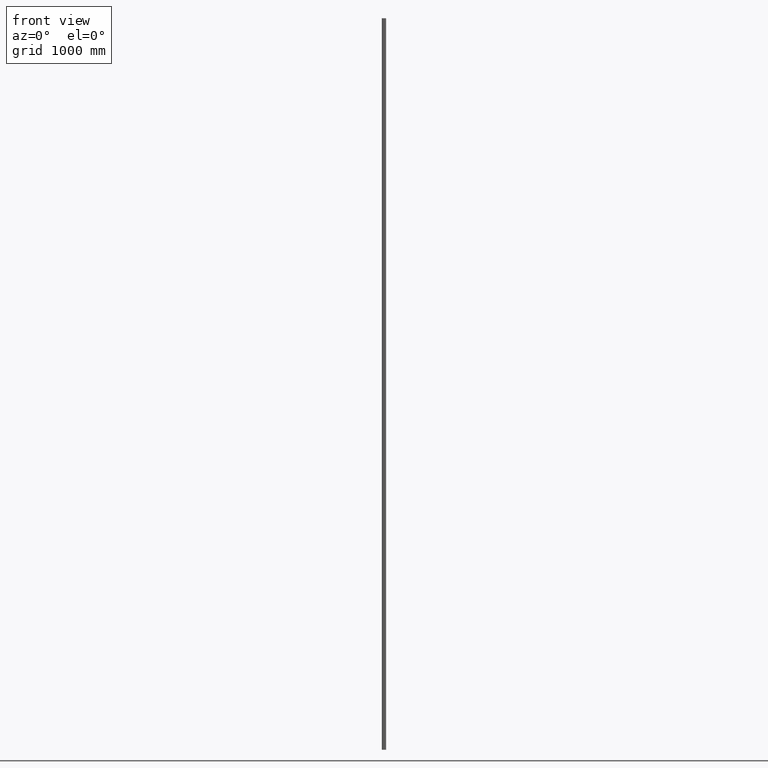
[diagram: clean part render]
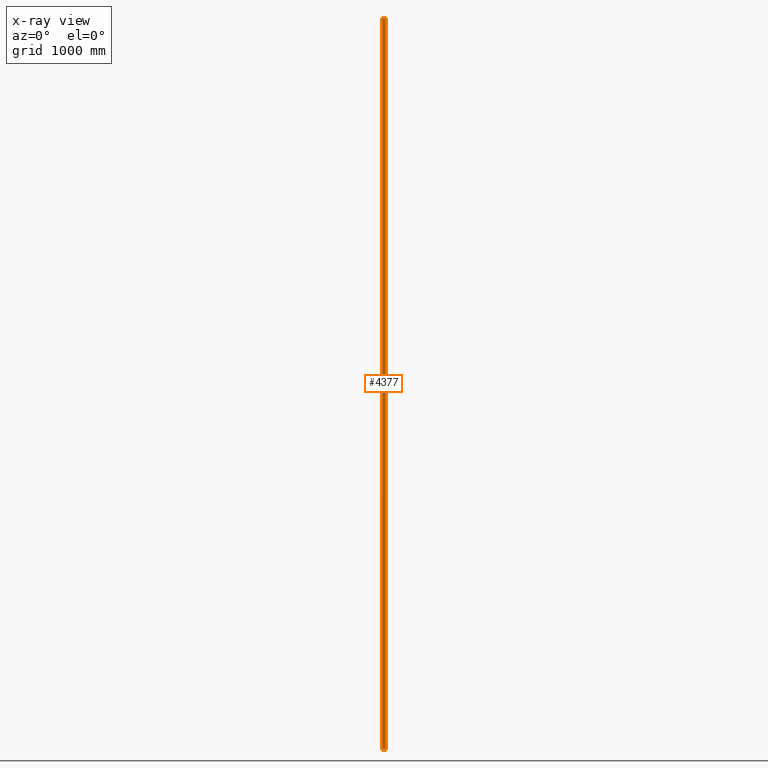
[diagram: x-ray — body ghosted, one internal face saturated and labeled with its STEP entity id]
A machine part, front view, then the same camera in x-ray: the body is ghosted and one INTERNAL B-rep face — a face not visible from any outside direction — is saturated and labeled: STEP entity #4377.
In plain terms, the highlighted planar face has unit normal (0, -1, 0).
Its self-contained STEP definition (entity closure, byte-faithful):
#322 = FACE_OUTER_BOUND ( 'NONE', #11311, .T. ) ;
#413 = CARTESIAN_POINT ( 'NONE',  ( 13.50000000000001954, 1.633079522306291054E-15, -3000.000000000000000 ) ) ;
#529 = ORIENTED_EDGE ( 'NONE', *, *, #9011, .T. ) ;
#992 = LINE ( 'NONE', #17570, #5976 ) ;
#1779 = VERTEX_POINT ( 'NONE', #4324 ) ;
#2609 = VERTEX_POINT ( 'NONE', #13456 ) ;
#3201 = AXIS2_PLACEMENT_3D ( 'NONE', #15634, #11478, #5686 ) ;
#3533 = VECTOR ( 'NONE', #5327, 1000.000000000000000 ) ;
#3664 = EDGE_CURVE ( 'NONE', #1779, #13505, #992, .T. ) ;
#4324 = CARTESIAN_POINT ( 'NONE',  ( -13.50000000000001954, -1.673737103774497470E-15, 3000.000000000000000 ) ) ;
#4377 = ADVANCED_FACE ( 'NONE', ( #322 ), #17083, .F. ) ;
#5099 = VECTOR ( 'NONE', #17577, 1000.000000000000000 ) ;
#5327 = DIRECTION ( 'NONE',  ( -0.000000000000000000, -0.000000000000000000, -1.000000000000000000 ) ) ;
#5686 = DIRECTION ( 'NONE',  ( 1.000000000000000000, 1.224746898548438642E-16, 0.000000000000000000 ) ) ;
#5976 = VECTOR ( 'NONE', #13149, 1000.000000000000000 ) ;
#7410 = VECTOR ( 'NONE', #10464, 1000.000000000000000 ) ;
#8761 = LINE ( 'NONE', #18413, #3533 ) ;
#9011 = EDGE_CURVE ( 'NONE', #10105, #13505, #15029, .T. ) ;
#9648 = LINE ( 'NONE', #10641, #7410 ) ;
#10037 = CARTESIAN_POINT ( 'NONE',  ( -13.50000000000001954, -1.673737103774497470E-15, -3000.000000000000000 ) ) ;
#10083 = EDGE_CURVE ( 'NONE', #2609, #10105, #8761, .T. ) ;
#10105 = VERTEX_POINT ( 'NONE', #11110 ) ;
#10464 = DIRECTION ( 'NONE',  ( -1.000000000000000000, -1.224746898548438642E-16, 0.000000000000000000 ) ) ;
#10641 = CARTESIAN_POINT ( 'NONE',  ( 13.50000000000001954, 1.633079522306291054E-15, 3000.000000000000000 ) ) ;
#11110 = CARTESIAN_POINT ( 'NONE',  ( 13.50000000000001954, 1.633079522306291054E-15, -3000.000000000000000 ) ) ;
#11311 = EDGE_LOOP ( 'NONE', ( #529, #13993, #12432, #16591 ) ) ;
#11478 = DIRECTION ( 'NONE',  ( 1.224746898548438642E-16, -1.000000000000000000, 0.000000000000000000 ) ) ;
#12340 = EDGE_CURVE ( 'NONE', #2609, #1779, #9648, .T. ) ;
#12432 = ORIENTED_EDGE ( 'NONE', *, *, #12340, .F. ) ;
#13149 = DIRECTION ( 'NONE',  ( -0.000000000000000000, -0.000000000000000000, -1.000000000000000000 ) ) ;
#13456 = CARTESIAN_POINT ( 'NONE',  ( 13.50000000000001954, 1.633079522306291054E-15, 3000.000000000000000 ) ) ;
#13505 = VERTEX_POINT ( 'NONE', #10037 ) ;
#13993 = ORIENTED_EDGE ( 'NONE', *, *, #3664, .F. ) ;
#15029 = LINE ( 'NONE', #413, #5099 ) ;
#15634 = CARTESIAN_POINT ( 'NONE',  ( 13.50000000000001954, 1.633079522306291054E-15, 3000.000000000000000 ) ) ;
#16591 = ORIENTED_EDGE ( 'NONE', *, *, #10083, .T. ) ;
#17083 = PLANE ( 'NONE',  #3201 ) ;
#17570 = CARTESIAN_POINT ( 'NONE',  ( -13.50000000000001954, -1.673737103774497470E-15, 3000.000000000000000 ) ) ;
#17577 = DIRECTION ( 'NONE',  ( -1.000000000000000000, -1.224746898548438642E-16, 0.000000000000000000 ) ) ;
#18413 = CARTESIAN_POINT ( 'NONE',  ( 13.50000000000001954, 1.633079522306291054E-15, 3000.000000000000000 ) ) ;